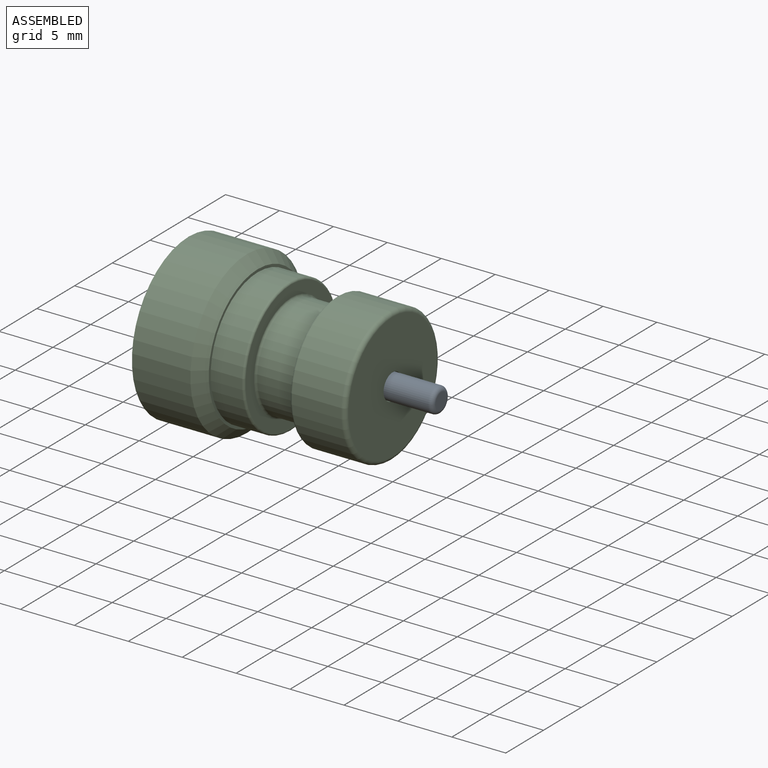
[diagram: assembled view]
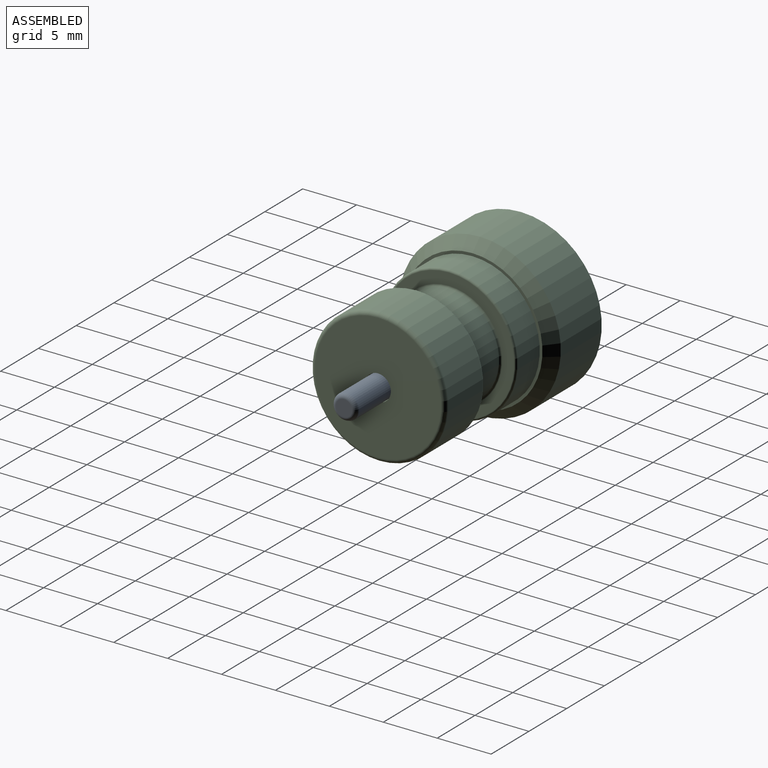
[diagram: assembled view, second angle]
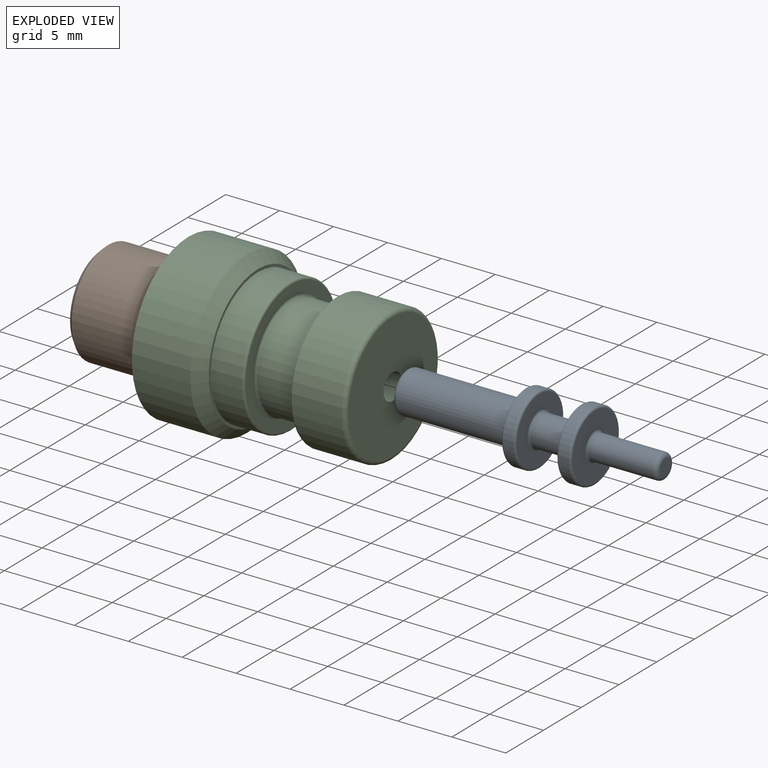
[diagram: exploded view]
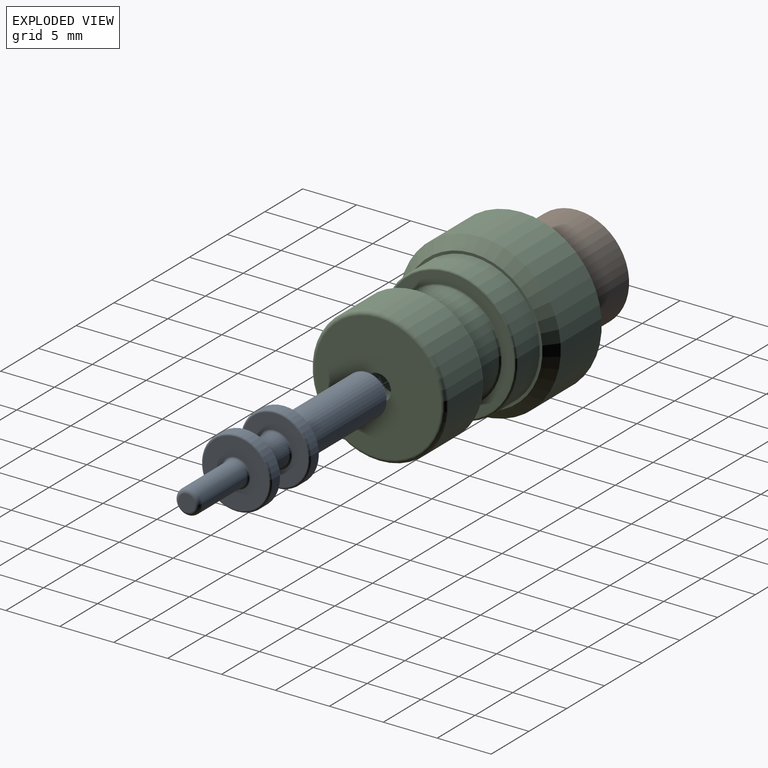
[diagram: exploded view, second angle]
ASSEMBLY  parts=3 mates=2
PART A: 21 faces, bbox 24x7x7 mm
  f0: plane 3.05x3.05mm, normal (-1,0,0), area 7.3mm2, adj f12
  f1: plane 1.5x1.5mm, normal (1,0,0), area 1.8mm2, adj f11
  f2: cylinder r=1.15mm len=5.9mm, axis (-1,0,0), area 42.6mm2, adj f11,f13
  f3: plane 6.1x6.1mm, normal (1,0,0), area 23.5mm2, adj f13,f14
  f4: cylinder r=3.25mm len=6.5mm, axis (-1,0,0), area 19mm2, adj f14,f15
  f5: plane 6.1x6.1mm, normal (-1,0,0), area 20.7mm2, adj f15,f16
  f6: cylinder r=1.45mm len=3.43mm, axis (-1,0,0), area 31.2mm2, adj f16,f17
  f7: plane 6.1x6.1mm, normal (1,0,0), area 20.7mm2, adj f17,f18
  f8: cylinder r=3.25mm len=6.5mm, axis (-1,0,0), area 18.4mm2, adj f18,f19
  f9: plane 6.1x6.1mm, normal (-1,0,0), area 15mm2, adj f19,f20
  f10: cylinder r=1.93mm len=10.44mm, axis (-1,0,0), area 126.3mm2, adj f12,f20
  f11: torus R=0.75mm, axis (1,0,0), area 4mm2, adj f1,f2
  f12: torus R=1.53mm, axis (-1,0,0), area 7mm2, adj f0,f10
  f13: torus R=1.35mm, axis (1,0,0), area 2.4mm2, adj f2,f3
  f14: torus R=3.05mm, axis (1,0,0), area 6.3mm2, adj f3,f4
  f15: torus R=3.05mm, axis (-1,0,0), area 6.3mm2, adj f4,f5
  f16: torus R=1.65mm, axis (-1,0,0), area 3mm2, adj f5,f6
  f17: torus R=1.65mm, axis (1,0,0), area 3mm2, adj f6,f7
  f18: torus R=3.05mm, axis (1,0,0), area 6.3mm2, adj f7,f8
  f19: torus R=3.05mm, axis (-1,0,0), area 6.3mm2, adj f8,f9
  f20: torus R=2.12mm, axis (-1,0,0), area 3.9mm2, adj f9,f10
PART B: 15 faces, bbox 6.4x9.6x9.6 mm
  f0: plane 8.6x8.6mm, normal (-1,0,0), area 41.4mm2, adj f1,f2,f8,f9,f10,f11,f12,f13
  f1: cylinder r=2mm len=3.46mm, axis (1,0,0), area 6.7mm2, adj f0,f5,f10,f11
  f2: cylinder r=2mm len=3.46mm, axis (1,0,0), area 6.7mm2, adj f0,f5,f9,f13
  f3: cone r=4.8mm half-angle=60deg, axis (-1,0,0), area 22mm2, adj f4,f7
  f4: cylinder r=4.8mm len=9.6mm, axis (1,0,0), area 166.1mm2, adj f3,f14
  f5: plane 6.33x6.33mm, normal (1,0,0), area 14.8mm2, adj f1,f2,f6,f8,f9,f10,f11,f12
  f6: cylinder r=3.16mm len=6.33mm, axis (1,0,0), area 95.4mm2, adj f5,f7
  f7: plane 8.24x8.24mm, normal (1,0,0), area 21.9mm2, adj f3,f6
  f8: cylinder r=1mm len=2mm, axis (-1,0,0), area 5mm2, adj f0,f5,f9,f10
  f9: plane 1.6x0.42mm, normal (0,0,-1), area 0.7mm2, adj f0,f2,f5,f8
  f10: plane 1.6x0.42mm, normal (0,0,1), area 0.7mm2, adj f0,f1,f5,f8
  f11: plane 1.6x0.42mm, normal (0,0,1), area 0.7mm2, adj f0,f1,f5,f12
  f12: cylinder r=1mm len=2mm, axis (-1,0,0), area 5mm2, adj f0,f5,f11,f13
  f13: plane 1.6x0.42mm, normal (0,0,-1), area 0.7mm2, adj f0,f2,f5,f12
  f14: cone r=4.3mm half-angle=45deg, axis (1,0,0), area 20.2mm2, adj f0,f4
PART C: 22 faces, bbox 19.5x15x15 mm
  f0: plane 8.5x8.5mm, normal (-1,0,0), area 16.4mm2, adj f15,f21
  f1: cylinder r=3.25mm len=9.25mm, axis (-1,0,0), area 188.9mm2, adj f2,f21
  f2: plane 6.5x6.5mm, normal (-1,0,0), area 28.7mm2, adj f1,f3
  f3: cylinder r=1.2mm len=2.4mm, axis (-1,0,0), area 15.1mm2, adj f2,f4
  f4: plane 11.7x11.7mm, normal (1,0,0), area 103mm2, adj f3,f16
  f5: cylinder r=6.25mm len=12.5mm, axis (-1,0,0), area 178.7mm2, adj f16,f17
  f6: plane 12.1x12.1mm, normal (-1,0,0), area 38mm2, adj f17,f18
  f7: cylinder r=4.75mm len=9.5mm, axis (-1,0,0), area 114.9mm2, adj f18,f19
  f8: plane 12.1x12.1mm, normal (1,0,0), area 38mm2, adj f19,f20
  f9: cylinder r=6.25mm len=12.5mm, axis (-1,0,0), area 113.9mm2, adj f10,f20
  f10: plane 13x13mm, normal (1,0,0), area 10mm2, adj f9,f11
  f11: cone r=7.5mm half-angle=45deg, axis (-1,0,0), area 62.2mm2, adj f10,f12
  f12: cylinder r=7.5mm len=15mm, axis (-1,0,0), area 255.5mm2, adj f11,f13
  f13: cone r=6.5mm half-angle=60deg, axis (1,0,0), area 50.8mm2, adj f12,f14
  f14: plane 13x13mm, normal (-1,0,0), area 76mm2, adj f13,f15
  f15: cylinder r=4.25mm len=8.5mm, axis (-1,0,0), area 186.9mm2, adj f0,f14
  f16: torus R=5.85mm, axis (-1,0,0), area 24.1mm2, adj f4,f5
  f17: torus R=6.05mm, axis (1,0,0), area 12.2mm2, adj f5,f6
  f18: torus R=4.95mm, axis (1,0,0), area 9.5mm2, adj f6,f7
  f19: torus R=4.95mm, axis (1,0,0), area 9.5mm2, adj f7,f8
  f20: torus R=6.05mm, axis (1,0,0), area 12.2mm2, adj f8,f9
  f21: cone r=3.25mm half-angle=15deg, axis (-1,0,0), area 27.8mm2, adj f0,f1
PLACE A rot(axis=(-1,0,0),85deg) t=(-19.5,0,0)mm
PLACE B t=(-18.9,0,0)mm
PLACE C t=(-19.5,0,0)mm
MATE fastened B.f1 <-> C.f1  axis (1,0,0) through (-12.5,0,0)mm
MATE cylindrical A.f2 <-> C.f1  axis (1,0,0) through (-2,0,0)mm
